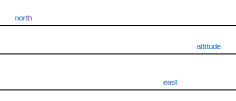
[diagram: root canvas - part 1/3, top center region]
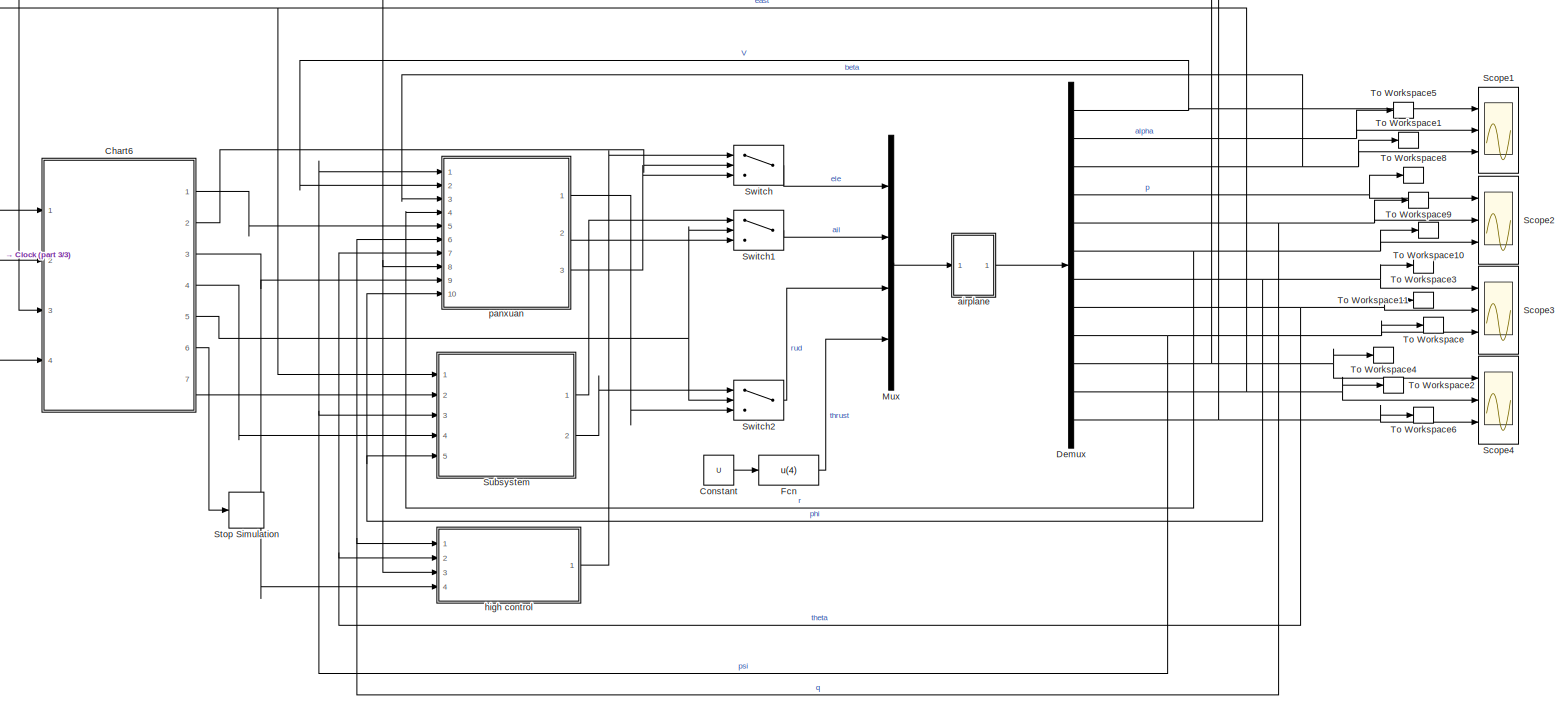
[diagram: root canvas - part 2/3, most of the canvas]
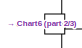
[diagram: root canvas - part 3/3, middle left region]
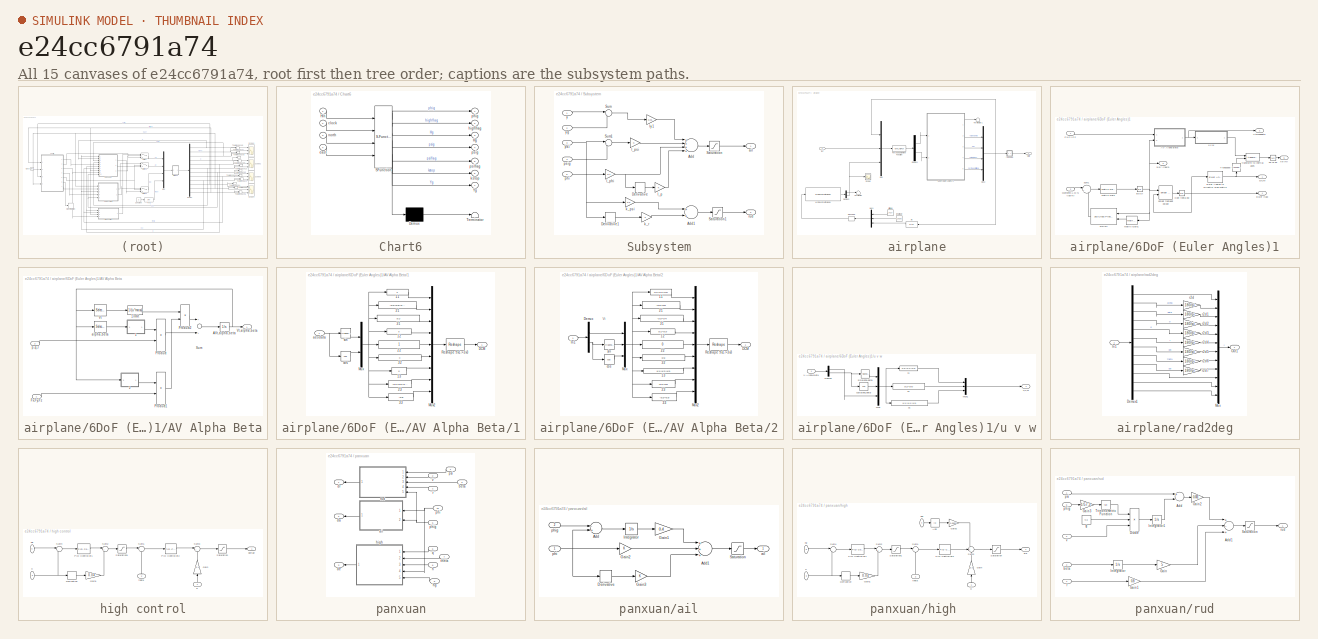
[diagram: thumbnail index - all 15 canvases of the model, root first then tree order]
MODEL slx_e24cc6791a74
KIND model
CONFIG AbsTol = auto
CONFIG FixedStep = auto
CONFIG MaxStep = auto
CONFIG MinStep = auto
CONFIG RelTol = 1e-3
CONFIG SampleTimeConstraint = Unconstrained
CONFIG Solver = VariableStepAuto
CONFIG SolverMode = Auto
CONFIG SolverName = VariableStepAuto
CONFIG StartTime = 0.0
CONFIG StopTime = 3000
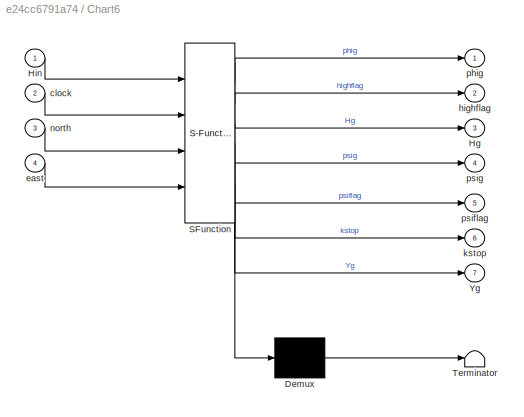
BLOCK [SubSystem] Chart6
  ErrorFcn = Stateflow.Translate.translate
  PermitHierarchicalResolution = ExplicitOnly
  Ports = [4, 7]
  RequestExecContextInheritance = off
  SFBlockType = Chart
  TreatAsAtomicUnit = on
  Variant = off
BLOCK [Demux] Chart6/ Demux 
  Outputs = 1
  Ports = [1, 1]
BLOCK [S-Function] Chart6/ SFunction 
  EnableBusSupport = on
  FunctionName = sf_sfun
  PortCounts = [4 8]
  Ports = [4, 8]
  SFunctionDeploymentMode = off
  Tag = Stateflow S-Function nonlinmodel 7
BLOCK [Terminator] Chart6/ Terminator 
BLOCK [Outport] Chart6/Hg
  IconDisplay = Port number
  Port = 3
BLOCK [Inport] Chart6/Hin
  IconDisplay = Port number
BLOCK [Outport] Chart6/Yg
  IconDisplay = Port number
  Port = 7
BLOCK [Inport] Chart6/clock
  IconDisplay = Port number
  Port = 2
BLOCK [Inport] Chart6/east
  IconDisplay = Port number
  Port = 4
BLOCK [Outport] Chart6/highflag
  IconDisplay = Port number
  Port = 2
BLOCK [Outport] Chart6/kstop
  IconDisplay = Port number
  Port = 6
BLOCK [Inport] Chart6/north
  IconDisplay = Port number
  Port = 3
BLOCK [Outport] Chart6/phig
  IconDisplay = Port number
BLOCK [Outport] Chart6/psiflag
  IconDisplay = Port number
  Port = 5
BLOCK [Outport] Chart6/psig
  IconDisplay = Port number
  Port = 4
BLOCK [Clock] Clock
BLOCK [Constant] Constant
  Value = U
BLOCK [Demux] Demux
  DisplayOption = bar
  Outputs = 12
  Ports = [1, 12]
BLOCK [Fcn] Fcn
  Expr = u(4)
BLOCK [Mux] Mux
  DisplayOption = bar
  Ports = [4, 1]
BLOCK [Scope] Scope1
  NumInputPorts = 3
  Ports = [3]
  ScopeSpecificationString = Simulink.scopes.TimeScopeBlockCfg('CurrentConfiguration', extmgr.ConfigurationSet(extmgr.Configuration('Core','General UI',true),extmgr.Configuration('Core','Source UI',true),extmgr.Configuration('Sources','WiredSimulink',true,'DataLoggingVariableName','ScopeData1'),extmgr.Configuration('Visuals','Time Domain',true,'SerializedDisplays',{struct('MinYLimReal','-79.31361','MaxYLimReal','689.29115','Y...<+1460ch>
BLOCK [Scope] Scope2
  NumInputPorts = 3
  Ports = [3]
  ScopeSpecificationString = Simulink.scopes.TimeScopeBlockCfg('CurrentConfiguration', extmgr.ConfigurationSet(extmgr.Configuration('Core','General UI',true),extmgr.Configuration('Core','Source UI',true),extmgr.Configuration('Sources','WiredSimulink',true,'DataLoggingVariableName','ScopeData2'),extmgr.Configuration('Visuals','Time Domain',true,'SerializedDisplays',{struct('MinYLimReal','-2.53874','MaxYLimReal','1.31012','YLab...<+1424ch>
BLOCK [Scope] Scope3
  NumInputPorts = 3
  Ports = [3]
  ScopeSpecificationString = Simulink.scopes.TimeScopeBlockCfg('CurrentConfiguration', extmgr.ConfigurationSet(extmgr.Configuration('Core','General UI',true,'FigureColor',[0 0 0]),extmgr.Configuration('Core','Source UI',true),extmgr.Configuration('Sources','WiredSimulink',true,'DataLoggingVariableName','ScopeData3'),extmgr.Configuration('Visuals','Time Domain',true,'SerializedDisplays',{struct('MinYLimReal','-47.86805','MaxYL...<+1483ch>
BLOCK [Scope] Scope4
  NumInputPorts = 3
  Ports = [3]
  ScopeSpecificationString = Simulink.scopes.TimeScopeBlockCfg('CurrentConfiguration', extmgr.ConfigurationSet(extmgr.Configuration('Core','General UI',true),extmgr.Configuration('Core','Source UI',true),extmgr.Configuration('Sources','WiredSimulink',true),extmgr.Configuration('Visuals','Time Domain',true,'SerializedDisplays',{struct('MinYLimReal','-1500712.99003','MaxYLimReal','13507416.9103','YLabelReal','','MinYLimMag','  ...<+1484ch>
BLOCK [Stop] Stop Simulation
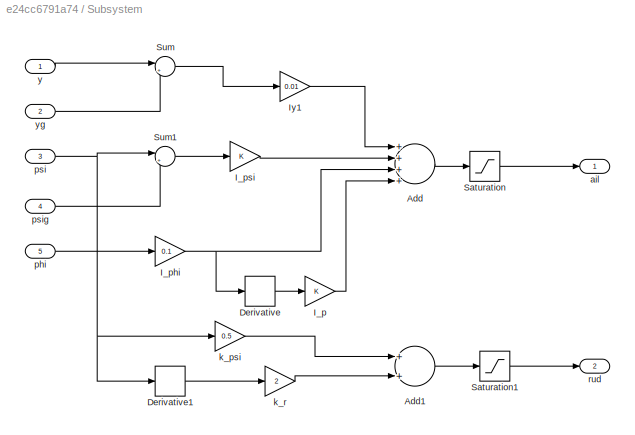
BLOCK [SubSystem] Subsystem
  Ports = [5, 2]
  RequestExecContextInheritance = off
  Variant = off
BLOCK [Sum] Subsystem/Add
  InputSameDT = off
  Inputs = ++++
  OutDataTypeStr = Inherit: Inherit via internal rule
  Ports = [4, 1]
  SaturateOnIntegerOverflow = off
BLOCK [Sum] Subsystem/Add1
  InputSameDT = off
  OutDataTypeStr = Inherit: Inherit via internal rule
  Ports = [2, 1]
  SaturateOnIntegerOverflow = off
BLOCK [Derivative] Subsystem/Derivative
BLOCK [Derivative] Subsystem/Derivative1
BLOCK [Gain] Subsystem/I_p
  OutDataTypeStr = Inherit: Inherit via internal rule
  ParamDataTypeStr = Inherit: Inherit via internal rule
  SaturateOnIntegerOverflow = off
BLOCK [Gain] Subsystem/I_phi
  Gain = 0.1
  OutDataTypeStr = Inherit: Inherit via internal rule
  ParamDataTypeStr = Inherit: Inherit via internal rule
  SaturateOnIntegerOverflow = off
BLOCK [Gain] Subsystem/I_psi
  OutDataTypeStr = Inherit: Inherit via internal rule
  ParamDataTypeStr = Inherit: Inherit via internal rule
  SaturateOnIntegerOverflow = off
BLOCK [Gain] Subsystem/Iy1
  Gain = 0.01
  OutDataTypeStr = Inherit: Inherit via internal rule
  ParamDataTypeStr = Inherit: Inherit via internal rule
  SaturateOnIntegerOverflow = off
BLOCK [Saturate] Subsystem/Saturation
  InputPortMap = u0
  LowerLimit = -12
  Ports = [1, 1]
  UpperLimit = 12
BLOCK [Saturate] Subsystem/Saturation1
  InputPortMap = u0
  LowerLimit = -8
  Ports = [1, 1]
  UpperLimit = 8
BLOCK [Sum] Subsystem/Sum
  IconShape = round
  InputSameDT = off
  Inputs = |+-
  OutDataTypeStr = Inherit: Inherit via internal rule
  Ports = [2, 1]
  SaturateOnIntegerOverflow = off
BLOCK [Sum] Subsystem/Sum1
  IconShape = round
  InputSameDT = off
  Inputs = |+-
  OutDataTypeStr = Inherit: Inherit via internal rule
  Ports = [2, 1]
  SaturateOnIntegerOverflow = off
BLOCK [Outport] Subsystem/ail
  IconDisplay = Port number
BLOCK [Gain] Subsystem/k_psi
  Gain = 0.5
  OutDataTypeStr = Inherit: Inherit via internal rule
  ParamDataTypeStr = Inherit: Inherit via internal rule
  SaturateOnIntegerOverflow = off
BLOCK [Gain] Subsystem/k_r
  Gain = 2
  OutDataTypeStr = Inherit: Inherit via internal rule
  ParamDataTypeStr = Inherit: Inherit via internal rule
  SaturateOnIntegerOverflow = off
BLOCK [Inport] Subsystem/phi
  IconDisplay = Port number
  Port = 5
BLOCK [Inport] Subsystem/psi
  IconDisplay = Port number
  Port = 3
BLOCK [Inport] Subsystem/psig
  IconDisplay = Port number
  Port = 4
BLOCK [Outport] Subsystem/rud
  IconDisplay = Port number
  Port = 2
BLOCK [Inport] Subsystem/y
  IconDisplay = Port number
BLOCK [Inport] Subsystem/yg
  IconDisplay = Port number
  Port = 2
BLOCK [Switch] Switch
  Criteria = u2 > Threshold
  InputSameDT = off
  SaturateOnIntegerOverflow = off
  Threshold = 0.5
BLOCK [Switch] Switch1
  Criteria = u2 > Threshold
  InputSameDT = off
  SaturateOnIntegerOverflow = off
  Threshold = 0.5
BLOCK [Switch] Switch2
  Criteria = u2 > Threshold
  InputSameDT = off
  SaturateOnIntegerOverflow = off
  Threshold = 0.5
BLOCK [ToWorkspace] To Workspace
  FixptAsFi = on
  MaxDataPoints = inf
  Ports = [1]
  SampleTime = -1
  Save2DSignal = 3-D array (concatenate along third dimension)
  SaveFormat = Timeseries
  VariableName = psi
BLOCK [ToWorkspace] To Workspace1
  FixptAsFi = on
  MaxDataPoints = inf
  Ports = [1]
  SampleTime = -1
  Save2DSignal = 3-D array (concatenate along third dimension)
  SaveFormat = Timeseries
  VariableName = beta
BLOCK [ToWorkspace] To Workspace10
  FixptAsFi = on
  MaxDataPoints = inf
  Ports = [1]
  SampleTime = -1
  Save2DSignal = 3-D array (concatenate along third dimension)
  SaveFormat = Timeseries
  VariableName = r
BLOCK [ToWorkspace] To Workspace11
  FixptAsFi = on
  MaxDataPoints = inf
  Ports = [1]
  SampleTime = -1
  Save2DSignal = 3-D array (concatenate along third dimension)
  SaveFormat = Timeseries
  VariableName = theta
BLOCK [ToWorkspace] To Workspace2
  FixptAsFi = on
  MaxDataPoints = inf
  Ports = [1]
  SampleTime = -1
  Save2DSignal = 3-D array (concatenate along third dimension)
  VariableName = east
BLOCK [ToWorkspace] To Workspace3
  FixptAsFi = on
  MaxDataPoints = inf
  Ports = [1]
  SampleTime = -1
  Save2DSignal = 3-D array (concatenate along third dimension)
  SaveFormat = Timeseries
  VariableName = phi
BLOCK [ToWorkspace] To Workspace4
  FixptAsFi = on
  MaxDataPoints = inf
  Ports = [1]
  SampleTime = -1
  Save2DSignal = 3-D array (concatenate along third dimension)
  VariableName = north
BLOCK [ToWorkspace] To Workspace5
  FixptAsFi = on
  MaxDataPoints = inf
  Ports = [1]
  SampleTime = -1
  Save2DSignal = 3-D array (concatenate along third dimension)
  SaveFormat = Timeseries
  VariableName = alph
BLOCK [ToWorkspace] To Workspace6
  FixptAsFi = on
  MaxDataPoints = inf
  Ports = [1]
  SampleTime = -1
  Save2DSignal = 2-D array (concatenate along first dimension)
  VariableName = high
BLOCK [ToWorkspace] To Workspace8
  FixptAsFi = on
  MaxDataPoints = inf
  Ports = [1]
  SampleTime = -1
  Save2DSignal = 3-D array (concatenate along third dimension)
  SaveFormat = Timeseries
  VariableName = p
BLOCK [ToWorkspace] To Workspace9
  FixptAsFi = on
  MaxDataPoints = inf
  Ports = [1]
  SampleTime = -1
  Save2DSignal = 3-D array (concatenate along third dimension)
  SaveFormat = Timeseries
  VariableName = q
BLOCK [SubSystem] airplane
  Ports = [1, 1]
  RequestExecContextInheritance = off
  Variant = off
BLOCK [SubSystem] airplane/6DoF (Euler Angles)1
  AncestorBlock = aerolib6dof/6DoF (Euler Angles)
  Ports = [2, 5]
  RequestExecContextInheritance = off
  Variant = off
BLOCK [SubSystem] airplane/6DoF (Euler Angles)1/AV Alpha Beta
  Ports = [2, 1]
  RequestExecContextInheritance = off
  Variant = off
BLOCK [SubSystem] airplane/6DoF (Euler Angles)1/AV Alpha Beta/1
  AncestorBlock = aerolibtransform/Euler Angles to \nDirection Cosine Matrix
  Ports = [1, 1]
  RequestExecContextInheritance = off
  ShowPortLabels = none
  Variant = off
BLOCK [Fcn] airplane/6DoF (Euler Angles)1/AV Alpha Beta/1//mVt
  Expr = 1/(u*mass)
BLOCK [Fcn] airplane/6DoF (Euler Angles)1/AV Alpha Beta/1/11
  Expr = 0
BLOCK [Fcn] airplane/6DoF (Euler Angles)1/AV Alpha Beta/1/12
  Expr = 0
BLOCK [Fcn] airplane/6DoF (Euler Angles)1/AV Alpha Beta/1/13
  Expr = 0
BLOCK [Fcn] airplane/6DoF (Euler Angles)1/AV Alpha Beta/1/21
  Expr = -u(2)*u(3)/u(4)
BLOCK [Fcn] airplane/6DoF (Euler Angles)1/AV Alpha Beta/1/22
  Expr = 1
BLOCK [Fcn] airplane/6DoF (Euler Angles)1/AV Alpha Beta/1/23
  Expr = -u(1)*u(2)/u(4)
BLOCK [Fcn] airplane/6DoF (Euler Angles)1/AV Alpha Beta/1/31
  Expr = u(1)
BLOCK [Fcn] airplane/6DoF (Euler Angles)1/AV Alpha Beta/1/32
  Expr = 0
BLOCK [Fcn] airplane/6DoF (Euler Angles)1/AV Alpha Beta/1/33
  Expr = -u(3)
BLOCK [Outport] airplane/6DoF (Euler Angles)1/AV Alpha Beta/1/DCM
  IconDisplay = Port number
  InitialOutput = 0
BLOCK [Mux] airplane/6DoF (Euler Angles)1/AV Alpha Beta/1/Mux
  DisplayOption = bar
  Inputs = 2
  Ports = [2, 1]
BLOCK [Mux] airplane/6DoF (Euler Angles)1/AV Alpha Beta/1/Mux2
  DisplayOption = bar
  Inputs = 9
  Ports = [9, 1]
BLOCK [Reshape] airplane/6DoF (Euler Angles)1/AV Alpha Beta/1/Reshape 9x1->3x3
  OutputDimensionality = Customize
  OutputDimensions = [3,3]
  Ports = [1, 1]
BLOCK [Inport] airplane/6DoF (Euler Angles)1/AV Alpha Beta/1/aeodata
  IconDisplay = Port number
BLOCK [Trigonometry] airplane/6DoF (Euler Angles)1/AV Alpha Beta/1/cos
  Operator = cos
  Ports = [1, 1]
BLOCK [Trigonometry] airplane/6DoF (Euler Angles)1/AV Alpha Beta/1/sin
  Ports = [1, 1]
BLOCK [SubSystem] airplane/6DoF (Euler Angles)1/AV Alpha Beta/2
  AncestorBlock = aerolibtransform/Euler Angles to \nDirection Cosine Matrix
  Ports = [1, 1]
  RequestExecContextInheritance = off
  ShowPortLabels = none
  Variant = off
BLOCK [Fcn] airplane/6DoF (Euler Angles)1/AV Alpha Beta/2/11
  Expr = u(1)*u(4)*u(5)
BLOCK [Fcn] airplane/6DoF (Euler Angles)1/AV Alpha Beta/2/12
  Expr = u(1)*u(3)
BLOCK [Fcn] airplane/6DoF (Euler Angles)1/AV Alpha Beta/2/13
  Expr = u(1)*u(2)*u(5)
BLOCK [Fcn] airplane/6DoF (Euler Angles)1/AV Alpha Beta/2/21
  Expr = -u(2)/u(5)
BLOCK [Fcn] airplane/6DoF (Euler Angles)1/AV Alpha Beta/2/22
  Expr = 0
BLOCK [Fcn] airplane/6DoF (Euler Angles)1/AV Alpha Beta/2/23
  Expr = u(4)/u(5)
BLOCK [Fcn] airplane/6DoF (Euler Angles)1/AV Alpha Beta/2/31
  Expr = -u(3)*u(4)
BLOCK [Fcn] airplane/6DoF (Euler Angles)1/AV Alpha Beta/2/32
  Expr = u(5)
BLOCK [Fcn] airplane/6DoF (Euler Angles)1/AV Alpha Beta/2/33
  Expr = -u(2)*u(3)
BLOCK [Outport] airplane/6DoF (Euler Angles)1/AV Alpha Beta/2/DCM
  IconDisplay = Port number
  InitialOutput = 0
BLOCK [Demux] airplane/6DoF (Euler Angles)1/AV Alpha Beta/2/Demux
  Outputs = [1 2]
  Ports = [1, 2]
BLOCK [Inport] airplane/6DoF (Euler Angles)1/AV Alpha Beta/2/In1
  IconDisplay = Port number
BLOCK [Mux] airplane/6DoF (Euler Angles)1/AV Alpha Beta/2/Mux
  DisplayOption = bar
  Inputs = [1 2 2]
  Ports = [3, 1]
BLOCK [Mux] airplane/6DoF (Euler Angles)1/AV Alpha Beta/2/Mux2
  DisplayOption = bar
  Inputs = 9
  Ports = [9, 1]
BLOCK [Reshape] airplane/6DoF (Euler Angles)1/AV Alpha Beta/2/Reshape 9x1->3x3
  OutputDimensionality = Customize
  OutputDimensions = [3,3]
  Ports = [1, 1]
BLOCK [Trigonometry] airplane/6DoF (Euler Angles)1/AV Alpha Beta/2/cos
  Operator = cos
  Ports = [1, 1]
BLOCK [Trigonometry] airplane/6DoF (Euler Angles)1/AV Alpha Beta/2/sin
  Ports = [1, 1]
BLOCK [Integrator] airplane/6DoF (Euler Angles)1/AV Alpha Beta/AVt,alpha,beta
  InitialCondition = Vmw_0
  Ports = [1, 1]
BLOCK [Inport] airplane/6DoF (Euler Angles)1/AV Alpha Beta/Fx,Fy,Fz
  IconDisplay = Port number
BLOCK [Product] airplane/6DoF (Euler Angles)1/AV Alpha Beta/Product
  InputSameDT = off
  Multiplication = Matrix(*)
  Ports = [2, 1]
  RndMeth = Floor
BLOCK [Product] airplane/6DoF (Euler Angles)1/AV Alpha Beta/Product1
  InputSameDT = off
  Multiplication = Matrix(*)
  Ports = [2, 1]
  RndMeth = Floor
BLOCK [Product] airplane/6DoF (Euler Angles)1/AV Alpha Beta/Product2
  InputSameDT = off
  Ports = [2, 1]
  RndMeth = Floor
BLOCK [Sum] airplane/6DoF (Euler Angles)1/AV Alpha Beta/Sum
  InputSameDT = off
  OutDataTypeStr = Inherit: Inherit via internal rule
  Ports = [2, 1]
BLOCK [Selector] airplane/6DoF (Euler Angles)1/AV Alpha Beta/Vt
  IndexOptions = Index vector (dialog)
  Indices = [1]
  InputPortWidth = 3
  OutputSizes = 1
  Ports = [1, 1]
BLOCK [Outport] airplane/6DoF (Euler Angles)1/AV Alpha Beta/Vt,alpha,beta
  IconDisplay = Port number
BLOCK [Selector] airplane/6DoF (Euler Angles)1/AV Alpha Beta/alpha,beta
  IndexOptions = Index vector (dialog)
  Indices = [2 3]
  InputPortWidth = 3
  OutputSizes = 1
  Ports = [1, 1]
BLOCK [Inport] airplane/6DoF (Euler Angles)1/AV Alpha Beta/p,q,r
  IconDisplay = Port number
  Port = 2
BLOCK [Integrator] airplane/6DoF (Euler Angles)1/Bp q r
  InitialCondition = pm_0
  Ports = [1, 1]
BLOCK [Integrator] airplane/6DoF (Euler Angles)1/Cphi theta psi
  InitialCondition = eul_0
  Ports = [1, 1]
BLOCK [Outport] airplane/6DoF (Euler Angles)1/DCM
  IconDisplay = Port number
BLOCK [Outport] airplane/6DoF (Euler Angles)1/Euler (rad)
  IconDisplay = Port number
  Port = 4
BLOCK [Reference] airplane/6DoF (Euler Angles)1/Euler Angles to Direction Cosine Matrix  REF=aerolibobsolete/Euler Angles to 
Direction Cosine Matrix
  Ports = [1, 1]
  SourceBlock = aerolibobsolete/Euler Angles to \nDirection Cosine Matrix
  SourceType = Euler2DCM
BLOCK [Inport] airplane/6DoF (Euler Angles)1/Fx,Fy,Fz
  IconDisplay = Port number
BLOCK [Reference] airplane/6DoF (Euler Angles)1/Matrix Gain  REF=aerolib6dof/6DoF (Euler Angles)/Matrix
Gain
  Ports = [1, 1]
  SourceBlock = aerolib6dof/6DoF (Euler Angles)/Matrix\nGain
  SourceType = Matrix Gain
BLOCK [Reference] airplane/6DoF (Euler Angles)1/Matrix Gain1  REF=aerolib6dof/6DoF (Euler Angles)/Matrix
Gain1
  Ports = [1, 1]
  SourceBlock = aerolib6dof/6DoF (Euler Angles)/Matrix\nGain1
  SourceType = Matrix Gain
BLOCK [Inport] airplane/6DoF (Euler Angles)1/Moments L M N (lbs-ft)
  IconDisplay = Port number
  Port = 2
BLOCK [Math] airplane/6DoF (Euler Angles)1/Transpose
  Operator = transpose
  Ports = [1, 1]
BLOCK [Outport] airplane/6DoF (Euler Angles)1/Vtalphabeta
  IconDisplay = Port number
  Port = 2
BLOCK [Outport] airplane/6DoF (Euler Angles)1/Xe (ft)
  IconDisplay = Port number
  Port = 5
BLOCK [Outport] airplane/6DoF (Euler Angles)1/p,q,r (rad//s)
  IconDisplay = Port number
  Port = 3
BLOCK [Reference] airplane/6DoF (Euler Angles)1/phidot thetadot psidot  REF=aerolib6dof/6DoF (Euler Angles)/phidot
thetadot
psidot
  Ports = [2, 1]
  SourceBlock = aerolib6dof/6DoF (Euler Angles)/phidot\nthetadot\npsidot
  SourceType = SubSystem
BLOCK [Sum] airplane/6DoF (Euler Angles)1/sum1
  IconShape = round
  Inputs = |+-
  Ports = [2, 1]
BLOCK [Reference] airplane/6DoF (Euler Angles)1/transform to Inertial axes   REF=aerolib6dof/6DoF (Euler Angles)/transform to
Inertial axes 
  Ports = [2, 1]
  SourceBlock = aerolib6dof/6DoF (Euler Angles)/transform to\nInertial axes
  SourceType = Vector Transformation
BLOCK [SubSystem] airplane/6DoF (Euler Angles)1/u v w
  Ports = [1, 1]
  RequestExecContextInheritance = off
  Variant = off
BLOCK [Fcn] airplane/6DoF (Euler Angles)1/u v w/11
  Expr = u(3)*u(4)*u(5)
BLOCK [Fcn] airplane/6DoF (Euler Angles)1/u v w/21
  Expr = u(2)*u(5)
BLOCK [Fcn] airplane/6DoF (Euler Angles)1/u v w/31
  Expr = u(1)*u(4)*u(5)
BLOCK [Demux] airplane/6DoF (Euler Angles)1/u v w/Demux
  DisplayOption = bar
  Outputs = [1,2]
  Ports = [1, 2]
BLOCK [Mux] airplane/6DoF (Euler Angles)1/u v w/Mux
  DisplayOption = bar
  Inputs = 3
  Ports = [3, 1]
BLOCK [Mux] airplane/6DoF (Euler Angles)1/u v w/Mux1
  DisplayOption = bar
  Inputs = 3
  Ports = [3, 1]
BLOCK [Inport] airplane/6DoF (Euler Angles)1/u v w/V,Alpha,Beta
  IconDisplay = Port number
BLOCK [Trigonometry] airplane/6DoF (Euler Angles)1/u v w/cos(alpha,beta)
  Operator = cos
  Ports = [1, 1]
BLOCK [Trigonometry] airplane/6DoF (Euler Angles)1/u v w/sin(alpha,beta)
  Ports = [1, 1]
BLOCK [Outport] airplane/6DoF (Euler Angles)1/u v w/u,v,w
  IconDisplay = Port number
BLOCK [Reference] airplane/6DoF (Euler Angles)1/wx(lw)  REF=aerolibutil/3x3 Cross Product
  Ports = [2, 1]
  SourceBlock = aerolibutil/3x3 Cross Product
  SourceType = CrossProduct
BLOCK [Integrator] airplane/6DoF (Euler Angles)1/xe ye ze
  InitialCondition = xme_0
  Ports = [1, 1]
BLOCK [Demux] airplane/Demux1
  DisplayOption = bar
  Outputs = [3,3]
  Ports = [1, 2]
BLOCK [Demux] airplane/Demux2
  DisplayOption = bar
  Outputs = 2
  Ports = [1, 2]
BLOCK [MATLABFcn] airplane/Force and Moment Function
  MATLABFcn = nlplant
  OutputDimensions = 6
  Ports = [1, 1]
BLOCK [Inport] airplane/In1
  IconDisplay = Port number
BLOCK [Mux] airplane/Mux
  DisplayOption = bar
  Inputs = [12,4,1]
  Ports = [3, 1]
BLOCK [Mux] airplane/Mux1
  DisplayOption = bar
  Inputs = 3
  Ports = [3, 1]
BLOCK [Mux] airplane/Mux2
  DisplayOption = bar
  Ports = [4, 1]
BLOCK [Reshape] airplane/Reshape
  Ports = [1, 1]
BLOCK [Scope] airplane/Scope
  Ports = [1]
  ScopeSpecificationString = C++SS(StrPVP('Location','[188, 365, 512, 604]'),StrPVP('Open','off'),MxPVP('AxesTitles',24,'struct(''axes1'',''%<SignalLabel>'')'),StrPVP('ShowLegends','off'),StrPVP('LimitDataPoints','on'),StrPVP('DataFormat','Array'),StrPVP('Decimation','1'),StrPVP('BlockParamSampleInput','off'),StrPVP('SaveName','ScopeData4'))
BLOCK [Terminator] airplane/Terminator
BLOCK [Terminator] airplane/Terminator1
BLOCK [Reference] airplane/WGS84 Gravity Model   REF=aerolibgravity2/WGS84 Gravity Model 
  Ports = [1, 1]
  SourceBlock = aerolibgravity2/WGS84 Gravity Model
  SourceType = WGS84 Gravity Model 3D
BLOCK [Fcn] airplane/alt
  Expr = u(12)
BLOCK [Constant] airplane/latitude
  Value = 34.27
BLOCK [Constant] airplane/longitude
  Value = 108.95
BLOCK [SubSystem] airplane/rad2deg
  Ports = [1, 1]
  RequestExecContextInheritance = off
  Variant = off
BLOCK [Demux] airplane/rad2deg/Demux1
  Outputs = 12
  Ports = [1, 12]
BLOCK [Inport] airplane/rad2deg/In1
  IconDisplay = Port number
BLOCK [Mux] airplane/rad2deg/Mux
  DisplayOption = bar
  Inputs = 12
  Ports = [12, 1]
BLOCK [Outport] airplane/rad2deg/Out1
  IconDisplay = Port number
BLOCK [Gain] airplane/rad2deg/r2d
  Gain = 180/pi
BLOCK [Gain] airplane/rad2deg/r2d1
  Gain = 180/pi
BLOCK [Gain] airplane/rad2deg/r2d2
  Gain = 180/pi
BLOCK [Gain] airplane/rad2deg/r2d3
  Gain = 180/pi
BLOCK [Gain] airplane/rad2deg/r2d4
  Gain = 180/pi
BLOCK [Gain] airplane/rad2deg/r2d5
  Gain = 180/pi
BLOCK [Gain] airplane/rad2deg/r2d6
  Gain = 180/pi
BLOCK [Gain] airplane/rad2deg/r2d7
  Gain = 180/pi
BLOCK [Outport] airplane/state
  IconDisplay = Port number
BLOCK [SubSystem] high control
  Ports = [4, 1]
  RequestExecContextInheritance = off
  Variant = off
BLOCK [Derivative] high control/Derivative
BLOCK [Gain] high control/Gain
  Gain = 0.3
  OutDataTypeStr = Inherit: Inherit via internal rule
  ParamDataTypeStr = Inherit: Inherit via internal rule
  SaturateOnIntegerOverflow = off
BLOCK [Gain] high control/Gain1
  Gain = 0.04
  OutDataTypeStr = Inherit: Inherit via internal rule
  ParamDataTypeStr = Inherit: Inherit via internal rule
  SaturateOnIntegerOverflow = off
BLOCK [Reference] high control/PID Controller1  REF=simulink/Continuous/PID Controller
  Ports = [1, 1]
  SourceBlock = simulink/Continuous/PID Controller
  SourceType = PID 1dof
BLOCK [Reference] high control/PID Controller2  REF=simulink/Continuous/PID Controller
  Ports = [1, 1]
  SourceBlock = simulink/Continuous/PID Controller
  SourceType = PID 1dof
BLOCK [Saturate] high control/Saturation
  InputPortMap = u0
  LowerLimit = -9
  Ports = [1, 1]
  UpperLimit = 9
BLOCK [Saturate] high control/Saturation1
  InputPortMap = u0
  LowerLimit = -15
  Ports = [1, 1]
  UpperLimit = 15
BLOCK [Sum] high control/Sum1
  IconShape = round
  InputSameDT = off
  Inputs = |-+
  OutDataTypeStr = Inherit: Inherit via internal rule
  Ports = [2, 1]
  SaturateOnIntegerOverflow = off
BLOCK [Sum] high control/Sum2
  IconShape = round
  InputSameDT = off
  Inputs = |++
  OutDataTypeStr = Inherit: Inherit via internal rule
  Ports = [2, 1]
  SaturateOnIntegerOverflow = off
BLOCK [Sum] high control/Sum3
  IconShape = round
  InputSameDT = off
  Inputs = |++
  OutDataTypeStr = Inherit: Inherit via internal rule
  Ports = [2, 1]
  SaturateOnIntegerOverflow = off
BLOCK [Sum] high control/Sum4
  IconShape = round
  InputSameDT = off
  Inputs = |-+
  OutDataTypeStr = Inherit: Inherit via internal rule
  Ports = [2, 1]
  SaturateOnIntegerOverflow = off
BLOCK [Outport] high control/deltae
  IconDisplay = Port number
BLOCK [Inport] high control/h
  IconDisplay = Port number
  Port = 3
BLOCK [Inport] high control/hg
  IconDisplay = Port number
  Port = 4
BLOCK [Inport] high control/q
  IconDisplay = Port number
BLOCK [Inport] high control/theta
  IconDisplay = Port number
  Port = 2
BLOCK [SubSystem] panxuan
  Ports = [10, 3]
  RequestExecContextInheritance = off
  Variant = off
BLOCK [SubSystem] panxuan/ail
  Ports = [2, 1]
  RequestExecContextInheritance = off
  Variant = off
BLOCK [Sum] panxuan/ail/Add
  InputSameDT = off
  Inputs = -+
  OutDataTypeStr = Inherit: Inherit via internal rule
  Ports = [2, 1]
  SaturateOnIntegerOverflow = off
BLOCK [Sum] panxuan/ail/Add1
  InputSameDT = off
  Inputs = +++
  OutDataTypeStr = Inherit: Inherit via internal rule
  Ports = [3, 1]
  SaturateOnIntegerOverflow = off
BLOCK [Derivative] panxuan/ail/Derivative
BLOCK [Gain] panxuan/ail/Gain1
  Gain = 0.4
  OutDataTypeStr = Inherit: Inherit via internal rule
  ParamDataTypeStr = Inherit: Inherit via internal rule
  SaturateOnIntegerOverflow = off
BLOCK [Gain] panxuan/ail/Gain2
  OutDataTypeStr = Inherit: Inherit via internal rule
  ParamDataTypeStr = Inherit: Inherit via internal rule
  SaturateOnIntegerOverflow = off
BLOCK [Gain] panxuan/ail/Gain3
  OutDataTypeStr = Inherit: Inherit via internal rule
  ParamDataTypeStr = Inherit: Inherit via internal rule
  SaturateOnIntegerOverflow = off
BLOCK [Integrator] panxuan/ail/Integrator
  Ports = [1, 1]
BLOCK [Saturate] panxuan/ail/Saturation
  InputPortMap = u0
  LowerLimit = -12
  Ports = [1, 1]
  UpperLimit = 12
BLOCK [Outport] panxuan/ail/ail
  IconDisplay = Port number
BLOCK [Inport] panxuan/ail/phi
  IconDisplay = Port number
BLOCK [Inport] panxuan/ail/phig
  IconDisplay = Port number
  Port = 2
BLOCK [Inport] panxuan/beta
  IconDisplay = Port number
  Port = 3
BLOCK [Outport] panxuan/da
  IconDisplay = Port number
  Port = 2
BLOCK [Outport] panxuan/de
  IconDisplay = Port number
  Port = 3
BLOCK [Outport] panxuan/dr
  IconDisplay = Port number
BLOCK [Inport] panxuan/h
  IconDisplay = Port number
  Port = 8
BLOCK [Inport] panxuan/hg
  IconDisplay = Port number
  Port = 9
BLOCK [SubSystem] panxuan/high 
  Ports = [5, 1]
  RequestExecContextInheritance = off
  Variant = off
BLOCK [Abs] panxuan/high /Abs
  SaturateOnIntegerOverflow = off
BLOCK [Derivative] panxuan/high /Derivative
BLOCK [Gain] panxuan/high /Gain
  Gain = 0.3
  OutDataTypeStr = Inherit: Inherit via internal rule
  ParamDataTypeStr = Inherit: Inherit via internal rule
  SaturateOnIntegerOverflow = off
BLOCK [Gain] panxuan/high /Gain1
  Gain = 0.04
  OutDataTypeStr = Inherit: Inherit via internal rule
  ParamDataTypeStr = Inherit: Inherit via internal rule
  SaturateOnIntegerOverflow = off
BLOCK [Gain] panxuan/high /Gain2
  Gain = -0.0002
  OutDataTypeStr = Inherit: Inherit via internal rule
  ParamDataTypeStr = Inherit: Inherit via internal rule
  SaturateOnIntegerOverflow = off
BLOCK [Reference] panxuan/high /PID Controller1  REF=simulink/Continuous/PID Controller
  Ports = [1, 1]
  SourceBlock = simulink/Continuous/PID Controller
  SourceType = PID 1dof
BLOCK [Reference] panxuan/high /PID Controller2  REF=simulink/Continuous/PID Controller
  Ports = [1, 1]
  SourceBlock = simulink/Continuous/PID Controller
  SourceType = PID 1dof
BLOCK [Saturate] panxuan/high /Saturation
  InputPortMap = u0
  LowerLimit = -9
  Ports = [1, 1]
  UpperLimit = 9
BLOCK [Saturate] panxuan/high /Saturation1
  InputPortMap = u0
  LowerLimit = -15
  Ports = [1, 1]
  UpperLimit = 15
BLOCK [Sum] panxuan/high /Sum1
  IconShape = round
  InputSameDT = off
  Inputs = |-+
  OutDataTypeStr = Inherit: Inherit via internal rule
  Ports = [2, 1]
  SaturateOnIntegerOverflow = off
BLOCK [Sum] panxuan/high /Sum2
  IconShape = round
  InputSameDT = off
  Inputs = |++
  OutDataTypeStr = Inherit: Inherit via internal rule
  Ports = [2, 1]
  SaturateOnIntegerOverflow = off
BLOCK [Sum] panxuan/high /Sum3
  IconShape = round
  InputSameDT = off
  Inputs = +++
  OutDataTypeStr = Inherit: Inherit via internal rule
  Ports = [3, 1]
  SaturateOnIntegerOverflow = off
BLOCK [Sum] panxuan/high /Sum4
  IconShape = round
  InputSameDT = off
  Inputs = |-+
  OutDataTypeStr = Inherit: Inherit via internal rule
  Ports = [2, 1]
  SaturateOnIntegerOverflow = off
BLOCK [Outport] panxuan/high /ele
  IconDisplay = Port number
BLOCK [Inport] panxuan/high /h
  IconDisplay = Port number
  Port = 3
BLOCK [Inport] panxuan/high /hg
  IconDisplay = Port number
  Port = 5
BLOCK [Inport] panxuan/high /phi
  IconDisplay = Port number
  Port = 4
BLOCK [Inport] panxuan/high /q
  IconDisplay = Port number
BLOCK [Inport] panxuan/high /theta
  IconDisplay = Port number
  Port = 2
BLOCK [Inport] panxuan/phi
  IconDisplay = Port number
  Port = 10
BLOCK [Inport] panxuan/phig
  IconDisplay = Port number
  Port = 5
BLOCK [Inport] panxuan/psi
  IconDisplay = Port number
BLOCK [Inport] panxuan/q
  IconDisplay = Port number
  Port = 6
BLOCK [Inport] panxuan/r
  IconDisplay = Port number
  Port = 4
BLOCK [SubSystem] panxuan/rud
  Ports = [5, 1]
  RequestExecContextInheritance = off
  Variant = off
BLOCK [Sum] panxuan/rud/Add
  InputSameDT = off
  Inputs = +-
  OutDataTypeStr = Inherit: Inherit via internal rule
  Ports = [2, 1]
  SaturateOnIntegerOverflow = off
BLOCK [Sum] panxuan/rud/Add1
  InputSameDT = off
  Inputs = +-+
  OutDataTypeStr = Inherit: Inherit via internal rule
  Ports = [3, 1]
  SaturateOnIntegerOverflow = off
BLOCK [Product] panxuan/rud/Divide
  InputSameDT = off
  Inputs = **/
  OutDataTypeStr = Inherit: Inherit via internal rule
  Ports = [3, 1]
  RndMeth = Floor
  SaturateOnIntegerOverflow = off
BLOCK [Gain] panxuan/rud/Gain
  Gain = 5
  OutDataTypeStr = Inherit: Inherit via internal rule
  ParamDataTypeStr = Inherit: Inherit via internal rule
  SaturateOnIntegerOverflow = off
BLOCK [Gain] panxuan/rud/Gain1
  Gain = 0.8
  OutDataTypeStr = Inherit: Inherit via internal rule
  ParamDataTypeStr = Inherit: Inherit via internal rule
  SaturateOnIntegerOverflow = off
BLOCK [Gain] panxuan/rud/Gain2
  Gain = 0.001
  OutDataTypeStr = Inherit: Inherit via internal rule
  ParamDataTypeStr = Inherit: Inherit via internal rule
  SaturateOnIntegerOverflow = off
BLOCK [Gain] panxuan/rud/Gain3
  Gain = 1/57.3
  OutDataTypeStr = Inherit: Inherit via internal rule
  ParamDataTypeStr = Inherit: Inherit via internal rule
  SaturateOnIntegerOverflow = off
BLOCK [Integrator] panxuan/rud/Integrator
  Ports = [1, 1]
BLOCK [Integrator] panxuan/rud/Integrator1
  Ports = [1, 1]
BLOCK [Saturate] panxuan/rud/Saturation
  InputPortMap = u0
  LowerLimit = -8
  Ports = [1, 1]
  UpperLimit = 8
BLOCK [Trigonometry] panxuan/rud/Trigonometric Function
  Operator = tan
  Ports = [1, 1]
BLOCK [Inport] panxuan/rud/beta
  IconDisplay = Port number
  Port = 3
BLOCK [Constant] panxuan/rud/g
  Value = 9.8
BLOCK [Inport] panxuan/rud/phig
  IconDisplay = Port number
  Port = 5
BLOCK [Inport] panxuan/rud/psi
  IconDisplay = Port number
BLOCK [Inport] panxuan/rud/r
  IconDisplay = Port number
  Port = 4
BLOCK [Outport] panxuan/rud/rud
  IconDisplay = Port number
BLOCK [Inport] panxuan/rud/v
  IconDisplay = Port number
  Port = 2
BLOCK [Inport] panxuan/theta
  IconDisplay = Port number
  Port = 7
BLOCK [Inport] panxuan/v
  IconDisplay = Port number
  Port = 2
ANNOTATION airplane/6DoF (Euler Angles)1/AV Alpha Beta/2: Vt
LINE Chart6:1 -> panxuan:5
LINE Chart6:2 -> Switch:2
NET Chart6:3 -> high control:4, panxuan:9
LINE Chart6:4 -> Subsystem:4
NET Chart6:5 -> Switch1:2, Switch2:2
LINE Chart6:6 -> Stop Simulation:1
LINE Chart6:7 -> Subsystem:2
LINE Clock:1 -> Chart6:2
LINE Constant:1 -> Fcn:1
NET Demux:1 -> Scope1:1, panxuan:2
NET Demux:10 -> Chart6:3, Scope4:1, To Workspace4:1
NET Demux:11 -> Chart6:4, Scope4:2, Subsystem:1, To Workspace2:1
NET Demux:12 -> Chart6:1, Scope4:3, To Workspace6:1, high control:3, panxuan:8
NET Demux:2 -> Scope1:2, To Workspace5:1
NET Demux:3 -> Scope1:3, To Workspace1:1, panxuan:3
NET Demux:4 -> Scope2:1, To Workspace8:1
NET Demux:5 -> Scope2:2, To Workspace9:1, high control:1, panxuan:6
NET Demux:6 -> Scope2:3, To Workspace10:1, panxuan:4
NET Demux:7 -> Scope3:1, Subsystem:5, To Workspace3:1, panxuan:10
NET Demux:8 -> Scope3:2, To Workspace11:1, high control:2, panxuan:7
NET Demux:9 -> Scope3:3, Subsystem:3, To Workspace:1, panxuan:1
LINE Fcn:1 -> Mux:4
LINE Mux:1 -> airplane:1
LINE Subsystem/Add1:1 -> Subsystem/Saturation1:1
LINE Subsystem/Add:1 -> Subsystem/Saturation:1
LINE Subsystem/Derivative1:1 -> Subsystem/k_r:1
LINE Subsystem/Derivative:1 -> Subsystem/I_p:1
LINE Subsystem/I_p:1 -> Subsystem/Add:4
NET Subsystem/I_phi:1 -> Subsystem/Add:3, Subsystem/Derivative:1
LINE Subsystem/I_psi:1 -> Subsystem/Add:2
LINE Subsystem/Iy1:1 -> Subsystem/Add:1
LINE Subsystem/Saturation1:1 -> Subsystem/rud:1
LINE Subsystem/Saturation:1 -> Subsystem/ail:1
LINE Subsystem/Sum1:1 -> Subsystem/I_psi:1
LINE Subsystem/Sum:1 -> Subsystem/Iy1:1
LINE Subsystem/k_psi:1 -> Subsystem/Add1:1
LINE Subsystem/k_r:1 -> Subsystem/Add1:2
LINE Subsystem/phi:1 -> Subsystem/I_phi:1
NET Subsystem/psi:1 -> Subsystem/Derivative1:1, Subsystem/Sum1:1, Subsystem/k_psi:1
LINE Subsystem/psig:1 -> Subsystem/Sum1:2
LINE Subsystem/y:1 -> Subsystem/Sum:1
LINE Subsystem/yg:1 -> Subsystem/Sum:2
LINE Subsystem:1 -> Switch1:1
LINE Subsystem:2 -> Switch2:1
LINE Switch1:1 -> Mux:2
LINE Switch2:1 -> Mux:3
LINE Switch:1 -> Mux:1
LINE airplane/6DoF (Euler Angles)1:1 -> airplane/Terminator1:1
LINE airplane/6DoF (Euler Angles)1:2 -> airplane/Mux2:1
LINE airplane/6DoF (Euler Angles)1:3 -> airplane/Mux2:2
LINE airplane/6DoF (Euler Angles)1:4 -> airplane/Mux2:3
LINE airplane/6DoF (Euler Angles)1:5 -> airplane/Mux2:4
LINE airplane/Demux1:1 -> airplane/6DoF (Euler Angles)1:1
LINE airplane/Demux1:2 -> airplane/6DoF (Euler Angles)1:2
LINE airplane/Demux2:1 -> airplane/Terminator:1
NET airplane/Demux2:2 -> airplane/Mux:3, airplane/Scope:1
LINE airplane/Force and Moment Function:1 -> airplane/Demux1:1
LINE airplane/In1:1 -> airplane/Mux:2
LINE airplane/Mux1:1 -> airplane/Reshape:1
NET airplane/Mux2:1 -> airplane/Mux:1, airplane/alt:1, airplane/rad2deg:1
LINE airplane/Mux:1 -> airplane/Force and Moment Function:1
LINE airplane/Reshape:1 -> airplane/WGS84 Gravity Model :1
LINE airplane/WGS84 Gravity Model :1 -> airplane/Demux2:1
LINE airplane/alt:1 -> airplane/Mux1:3
LINE airplane/latitude:1 -> airplane/Mux1:1
LINE airplane/longitude:1 -> airplane/Mux1:2
LINE airplane/rad2deg/Demux1:1 -> airplane/rad2deg/Mux:1
LINE airplane/rad2deg/Demux1:10 -> airplane/rad2deg/Mux:10
LINE airplane/rad2deg/Demux1:11 -> airplane/rad2deg/Mux:11
LINE airplane/rad2deg/Demux1:12 -> airplane/rad2deg/Mux:12
LINE airplane/rad2deg/Demux1:2 -> airplane/rad2deg/r2d:1
LINE airplane/rad2deg/Demux1:3 -> airplane/rad2deg/r2d1:1
LINE airplane/rad2deg/Demux1:4 -> airplane/rad2deg/r2d2:1
LINE airplane/rad2deg/Demux1:5 -> airplane/rad2deg/r2d3:1
LINE airplane/rad2deg/Demux1:6 -> airplane/rad2deg/r2d4:1
LINE airplane/rad2deg/Demux1:7 -> airplane/rad2deg/r2d5:1
LINE airplane/rad2deg/Demux1:8 -> airplane/rad2deg/r2d6:1
LINE airplane/rad2deg/Demux1:9 -> airplane/rad2deg/r2d7:1
LINE airplane/rad2deg/In1:1 -> airplane/rad2deg/Demux1:1
LINE airplane/rad2deg/Mux:1 -> airplane/rad2deg/Out1:1
LINE airplane/rad2deg/r2d1:1 -> airplane/rad2deg/Mux:3
LINE airplane/rad2deg/r2d2:1 -> airplane/rad2deg/Mux:4
LINE airplane/rad2deg/r2d3:1 -> airplane/rad2deg/Mux:5
LINE airplane/rad2deg/r2d4:1 -> airplane/rad2deg/Mux:6
LINE airplane/rad2deg/r2d5:1 -> airplane/rad2deg/Mux:7
LINE airplane/rad2deg/r2d6:1 -> airplane/rad2deg/Mux:8
LINE airplane/rad2deg/r2d7:1 -> airplane/rad2deg/Mux:9
LINE airplane/rad2deg/r2d:1 -> airplane/rad2deg/Mux:2
LINE airplane/rad2deg:1 -> airplane/state:1
LINE airplane:1 -> Demux:1
LINE high control/Derivative:1 -> high control/Gain1:1
LINE high control/Gain1:1 -> high control/Sum2:2
LINE high control/Gain:1 -> high control/Sum3:2
LINE high control/PID Controller1:1 -> high control/Sum2:1
LINE high control/PID Controller2:1 -> high control/Sum3:1
LINE high control/Saturation1:1 -> high control/Sum1:1
LINE high control/Saturation:1 -> high control/deltae:1
LINE high control/Sum1:1 -> high control/PID Controller2:1
LINE high control/Sum2:1 -> high control/Saturation1:1
LINE high control/Sum3:1 -> high control/Saturation:1
LINE high control/Sum4:1 -> high control/PID Controller1:1
NET high control/h:1 -> high control/Derivative:1, high control/Sum4:2
LINE high control/hg:1 -> high control/Sum4:1
LINE high control/q:1 -> high control/Gain:1
LINE high control/theta:1 -> high control/Sum1:2
LINE high control:1 -> Switch:1
LINE panxuan/ail/Add1:1 -> panxuan/ail/Saturation:1
LINE panxuan/ail/Add:1 -> panxuan/ail/Integrator:1
LINE panxuan/ail/Derivative:1 -> panxuan/ail/Gain3:1
LINE panxuan/ail/Gain1:1 -> panxuan/ail/Add1:1
LINE panxuan/ail/Gain2:1 -> panxuan/ail/Add1:2
LINE panxuan/ail/Gain3:1 -> panxuan/ail/Add1:3
LINE panxuan/ail/Integrator:1 -> panxuan/ail/Gain1:1
LINE panxuan/ail/Saturation:1 -> panxuan/ail/ail:1
NET panxuan/ail/phi:1 -> panxuan/ail/Add:2, panxuan/ail/Derivative:1, panxuan/ail/Gain2:1
LINE panxuan/ail/phig:1 -> panxuan/ail/Add:1
LINE panxuan/ail:1 -> panxuan/da:1
LINE panxuan/beta:1 -> panxuan/rud:3
LINE panxuan/h:1 -> panxuan/high :3
LINE panxuan/hg:1 -> panxuan/high :5
LINE panxuan/high /Abs:1 -> panxuan/high /Gain2:1
LINE panxuan/high /Derivative:1 -> panxuan/high /Gain1:1
LINE panxuan/high /Gain1:1 -> panxuan/high /Sum2:2
LINE panxuan/high /Gain2:1 -> panxuan/high /Sum3:1
LINE panxuan/high /Gain:1 -> panxuan/high /Sum3:3
LINE panxuan/high /PID Controller1:1 -> panxuan/high /Sum2:1
LINE panxuan/high /PID Controller2:1 -> panxuan/high /Sum3:2
LINE panxuan/high /Saturation1:1 -> panxuan/high /Sum1:1
LINE panxuan/high /Saturation:1 -> panxuan/high /ele:1
LINE panxuan/high /Sum1:1 -> panxuan/high /PID Controller2:1
LINE panxuan/high /Sum2:1 -> panxuan/high /Saturation1:1
LINE panxuan/high /Sum3:1 -> panxuan/high /Saturation:1
LINE panxuan/high /Sum4:1 -> panxuan/high /PID Controller1:1
NET panxuan/high /h:1 -> panxuan/high /Derivative:1, panxuan/high /Sum4:2
LINE panxuan/high /hg:1 -> panxuan/high /Sum4:1
LINE panxuan/high /phi:1 -> panxuan/high /Abs:1
LINE panxuan/high /q:1 -> panxuan/high /Gain:1
LINE panxuan/high /theta:1 -> panxuan/high /Sum1:2
LINE panxuan/high :1 -> panxuan/de:1
NET panxuan/phi:1 -> panxuan/ail:1, panxuan/high :4
NET panxuan/phig:1 -> panxuan/ail:2, panxuan/rud:5
LINE panxuan/psi:1 -> panxuan/rud:1
LINE panxuan/q:1 -> panxuan/high :1
LINE panxuan/r:1 -> panxuan/rud:4
LINE panxuan/rud/Add1:1 -> panxuan/rud/Saturation:1
LINE panxuan/rud/Add:1 -> panxuan/rud/Gain2:1
LINE panxuan/rud/Divide:1 -> panxuan/rud/Integrator1:1
LINE panxuan/rud/Gain1:1 -> panxuan/rud/Add1:3
LINE panxuan/rud/Gain2:1 -> panxuan/rud/Add1:1
LINE panxuan/rud/Gain3:1 -> panxuan/rud/Trigonometric Function:1
LINE panxuan/rud/Gain:1 -> panxuan/rud/Add1:2
LINE panxuan/rud/Integrator1:1 -> panxuan/rud/Add:2
LINE panxuan/rud/Integrator:1 -> panxuan/rud/Gain:1
LINE panxuan/rud/Saturation:1 -> panxuan/rud/rud:1
LINE panxuan/rud/Trigonometric Function:1 -> panxuan/rud/Divide:1
LINE panxuan/rud/beta:1 -> panxuan/rud/Integrator:1
LINE panxuan/rud/g:1 -> panxuan/rud/Divide:2
LINE panxuan/rud/phig:1 -> panxuan/rud/Gain3:1
LINE panxuan/rud/psi:1 -> panxuan/rud/Add:1
LINE panxuan/rud/r:1 -> panxuan/rud/Gain1:1
LINE panxuan/rud/v:1 -> panxuan/rud/Divide:3
LINE panxuan/rud:1 -> panxuan/dr:1
LINE panxuan/theta:1 -> panxuan/high :2
LINE panxuan/v:1 -> panxuan/rud:2
LINE panxuan:1 -> Switch2:3
LINE panxuan:2 -> Switch1:3
LINE panxuan:3 -> Switch:3
note: NET lines group one-source signal fan-out (src -> all destinations, sorted); 1:1 wires keep LINE
CHART Chart6 states=9 transitions=9
  STATE_LABEL 'panxuan\nentry:highflag=0;\nHg=22000;psig=0;psiflag=0;\nYg=100;phig=10;\nexit:tt3=clock;'
  STATE_LABEL 'pingfei1\nentry:highflag=1;\nHg=21800;psig=0;psiflag=1;\nYg=0;phig=0;\n'
  STATE_LABEL 'xiahua\nentry:highflag=1;\nHg=22000;psig=0;psiflag=1;\nYg=0;phig=0;\nexit: tt2=clock;'
  STATE_LABEL 'pingfei\nentry:highflag=1;\nHg=22000;psig=0;psiflag=1;\nYg=0;phig=0;'
  STATE_LABEL 'pasheng\nentry:highflag=1;\nHg=21800;psig=0;psiflag=1;\nYg=0;phig=0;\nexit: tt1=clock;'
  STATE_LABEL 'pingfei4\nentry:highflag=1;\nHg=22000;psig=0;psiflag=1;\nYg=100;phig=0;\n'
  STATE_LABEL 'stop\nentry:kstop=1;'
  STATE_LABEL 'pingfei3\nentry:highflag=1;\nHg=22000;psig=0;psiflag=1;\nYg=0;phig=0;\n'
  STATE_LABEL 'cepian\nentry:highflag=1;\nHg=22000;psig=0;psiflag=1;\nYg=100;phig=0;\n'
